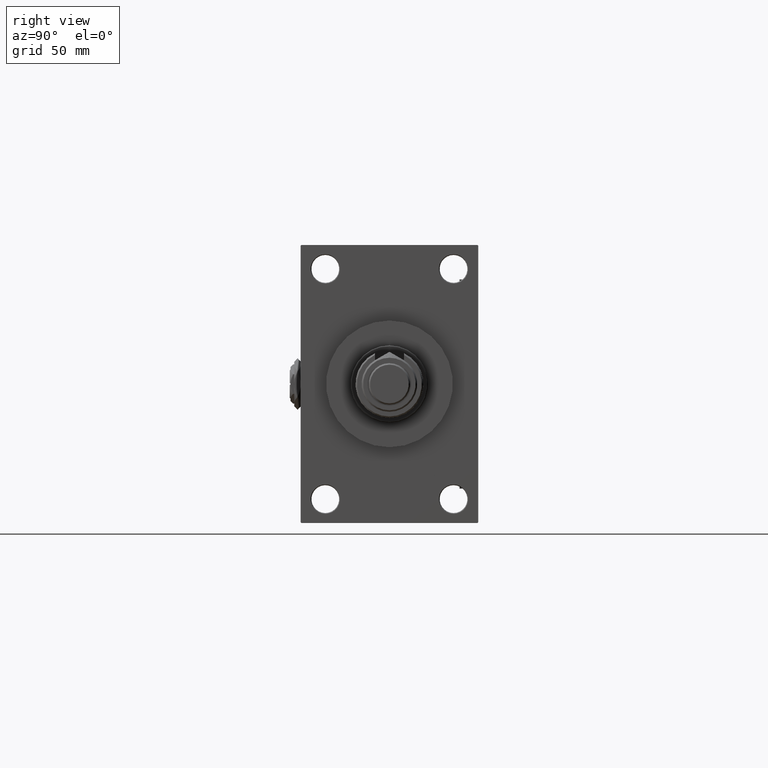
[diagram: clean part render]
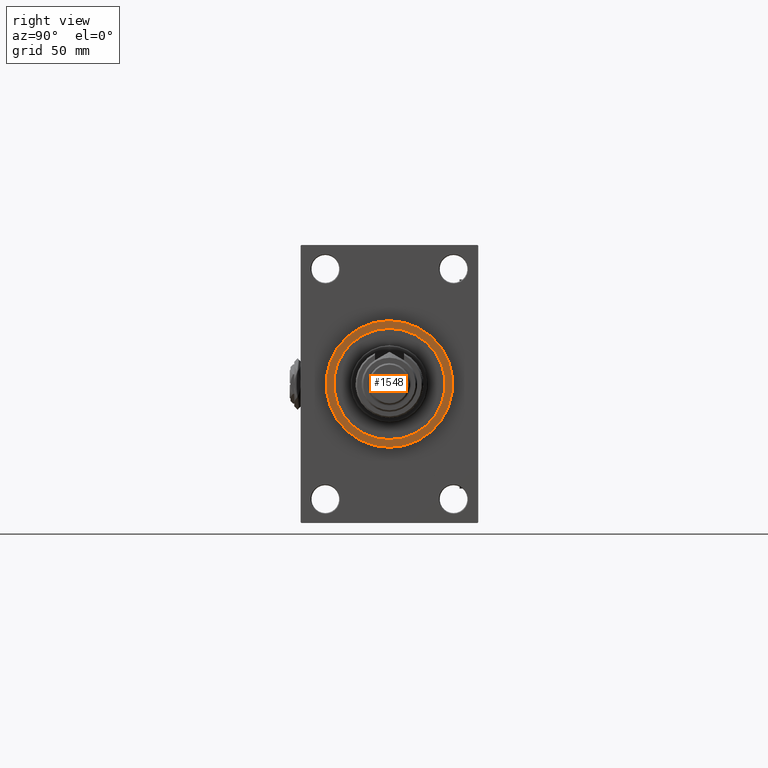
[diagram: same view with one face highlighted and labeled with its STEP entity id]
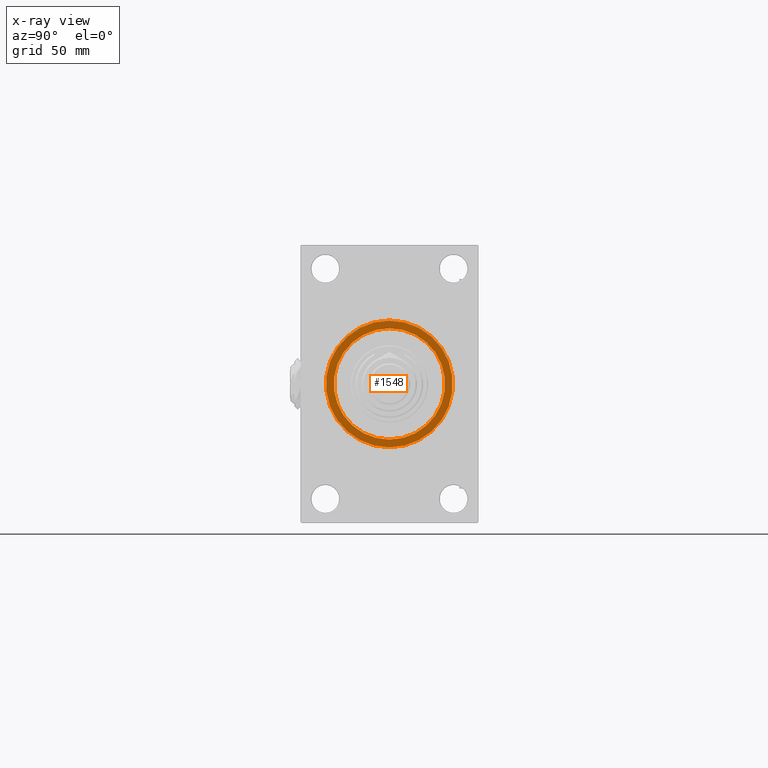
[diagram: x-ray of the same camera — body ghosted, the highlighted face saturated]
A machine part, right view. The second image highlights one B-rep face of the part: STEP entity #1548.
The next image is the same camera in x-ray: the body ghosted, the highlighted face saturated — about 0% of this face is hidden behind the body in this view.
In plain terms, the highlighted planar face has unit normal (1, 0, 0).
Its self-contained STEP definition (entity closure, byte-faithful):
#575 = CARTESIAN_POINT ( 'NONE',  ( 259.0000000000000000, 0.000000000000000000, 0.000000000000000000 ) ) ;
#1230 = VERTEX_POINT ( 'NONE', #44942 ) ;
#1548 = ADVANCED_FACE ( 'NONE', ( #1974, #36409 ), #2780, .T. ) ;
#1927 = ORIENTED_EDGE ( 'NONE', *, *, #26780, .F. ) ;
#1974 = FACE_BOUND ( 'NONE', #29582, .T. ) ;
#2752 = DIRECTION ( 'NONE',  ( 0.000000000000000000, 0.000000000000000000, -1.000000000000000000 ) ) ;
#2780 = PLANE ( 'NONE',  #17497 ) ;
#4567 = DIRECTION ( 'NONE',  ( 1.000000000000000000, 0.000000000000000000, 0.000000000000000000 ) ) ;
#6608 = EDGE_CURVE ( 'NONE', #1230, #48163, #40441, .T. ) ;
#6998 = VERTEX_POINT ( 'NONE', #8917 ) ;
#7212 = ORIENTED_EDGE ( 'NONE', *, *, #14197, .F. ) ;
#8088 = DIRECTION ( 'NONE',  ( 0.000000000000000000, 0.000000000000000000, -1.000000000000000000 ) ) ;
#8365 = CIRCLE ( 'NONE', #21550, 36.00000000000000000 ) ;
#8917 = CARTESIAN_POINT ( 'NONE',  ( 259.0000000000000000, 4.408728476930470856E-15, 36.00000000000000000 ) ) ;
#9429 = CARTESIAN_POINT ( 'NONE',  ( 259.0000000000000000, 0.000000000000000000, -36.00000000000000000 ) ) ;
#10232 = ORIENTED_EDGE ( 'NONE', *, *, #12410, .T. ) ;
#10471 = CIRCLE ( 'NONE', #23693, 36.00000000000000000 ) ;
#12410 = EDGE_CURVE ( 'NONE', #48163, #1230, #31136, .T. ) ;
#14197 = EDGE_CURVE ( 'NONE', #6998, #29374, #8365, .T. ) ;
#17497 = AXIS2_PLACEMENT_3D ( 'NONE', #19613, #18801, #35597 ) ;
#17911 = CARTESIAN_POINT ( 'NONE',  ( 259.0000000000000000, 5.021051876504148963E-15, -41.00000000000000000 ) ) ;
#18801 = DIRECTION ( 'NONE',  ( 1.000000000000000000, 0.000000000000000000, 0.000000000000000000 ) ) ;
#19116 = ORIENTED_EDGE ( 'NONE', *, *, #6608, .T. ) ;
#19613 = CARTESIAN_POINT ( 'NONE',  ( 259.0000000000000000, 0.000000000000000000, 0.000000000000000000 ) ) ;
#21550 = AXIS2_PLACEMENT_3D ( 'NONE', #575, #24871, #28994 ) ;
#23693 = AXIS2_PLACEMENT_3D ( 'NONE', #51083, #33709, #8088 ) ;
#24871 = DIRECTION ( 'NONE',  ( 1.000000000000000000, 0.000000000000000000, 0.000000000000000000 ) ) ;
#26780 = EDGE_CURVE ( 'NONE', #29374, #6998, #10471, .T. ) ;
#28111 = EDGE_LOOP ( 'NONE', ( #19116, #10232 ) ) ;
#28994 = DIRECTION ( 'NONE',  ( 0.000000000000000000, 0.000000000000000000, -1.000000000000000000 ) ) ;
#29374 = VERTEX_POINT ( 'NONE', #9429 ) ;
#29582 = EDGE_LOOP ( 'NONE', ( #1927, #7212 ) ) ;
#31136 = CIRCLE ( 'NONE', #45206, 41.00000000000000000 ) ;
#33709 = DIRECTION ( 'NONE',  ( 1.000000000000000000, 0.000000000000000000, 0.000000000000000000 ) ) ;
#35597 = DIRECTION ( 'NONE',  ( 0.000000000000000000, 0.000000000000000000, -1.000000000000000000 ) ) ;
#36409 = FACE_OUTER_BOUND ( 'NONE', #28111, .T. ) ;
#38999 = DIRECTION ( 'NONE',  ( 0.000000000000000000, 0.000000000000000000, -1.000000000000000000 ) ) ;
#40441 = CIRCLE ( 'NONE', #43092, 41.00000000000000000 ) ;
#43092 = AXIS2_PLACEMENT_3D ( 'NONE', #51151, #4567, #38999 ) ;
#44654 = DIRECTION ( 'NONE',  ( 1.000000000000000000, 0.000000000000000000, 0.000000000000000000 ) ) ;
#44942 = CARTESIAN_POINT ( 'NONE',  ( 259.0000000000000000, 0.000000000000000000, 41.00000000000000000 ) ) ;
#45206 = AXIS2_PLACEMENT_3D ( 'NONE', #52946, #44654, #2752 ) ;
#48163 = VERTEX_POINT ( 'NONE', #17911 ) ;
#51083 = CARTESIAN_POINT ( 'NONE',  ( 259.0000000000000000, 0.000000000000000000, 0.000000000000000000 ) ) ;
#51151 = CARTESIAN_POINT ( 'NONE',  ( 259.0000000000000000, 0.000000000000000000, 0.000000000000000000 ) ) ;
#52946 = CARTESIAN_POINT ( 'NONE',  ( 259.0000000000000000, 0.000000000000000000, 0.000000000000000000 ) ) ;